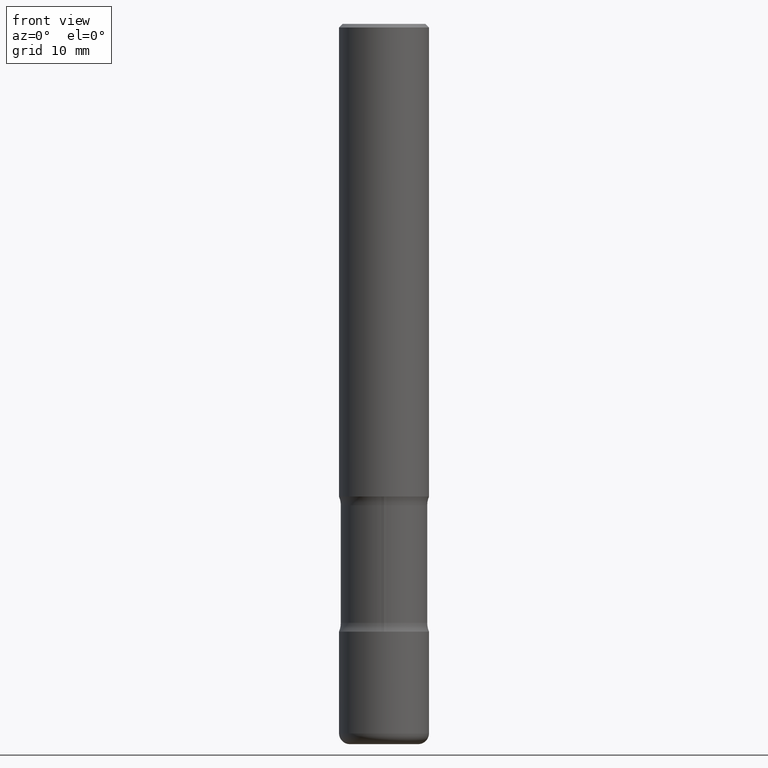
[diagram: clean part render]
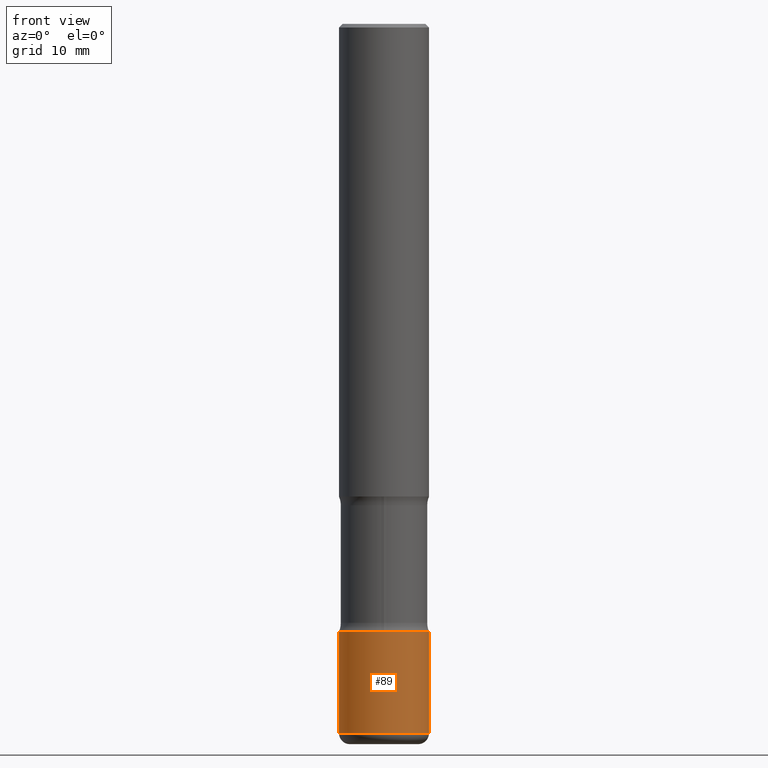
[diagram: same view with one face highlighted and labeled with its STEP entity id]
A machine part, front view. The second image highlights one B-rep face of the part: STEP entity #89.
In plain terms, the highlighted cylindrical surface (partial cylindrical patch) has radius 6.35 mm, axis along (-0, 0, 1).
Its self-contained STEP definition (entity closure, byte-faithful):
#26 = VECTOR ( 'NONE', #510, 39.37007874015748143 ) ;
#60 = CARTESIAN_POINT ( 'NONE',  ( -0.2500000000000000000, 1.776356839400250465E-15, -1.229733772563726445E-29 ) ) ;
#62 = AXIS2_PLACEMENT_3D ( 'NONE', #315, #686, #450 ) ;
#70 = VERTEX_POINT ( 'NONE', #652 ) ;
#81 = ORIENTED_EDGE ( 'NONE', *, *, #268, .T. ) ;
#89 = ADVANCED_FACE ( 'NONE', ( #163 ), #419, .T. ) ;
#92 = DIRECTION ( 'NONE',  ( -2.445468806185136877E-29, 3.491481338843145188E-15, 1.000000000000000000 ) ) ;
#97 = LINE ( 'NONE', #478, #785 ) ;
#98 = DIRECTION ( 'NONE',  ( -2.445468806185136597E-29, 3.491481338843145583E-15, 1.000000000000000000 ) ) ;
#99 = VERTEX_POINT ( 'NONE', #479 ) ;
#163 = FACE_OUTER_BOUND ( 'NONE', #461, .T. ) ;
#189 = VERTEX_POINT ( 'NONE', #299 ) ;
#192 = CARTESIAN_POINT ( 'NONE',  ( 9.635147096369438236E-29, -1.375643647504199401E-14, -3.939999999999999947 ) ) ;
#213 = CIRCLE ( 'NONE', #62, 0.2500000000000000000 ) ;
#224 = DIRECTION ( 'NONE',  ( 1.000000000000000000, -6.982962677686266711E-15, 4.876176775795935793E-29 ) ) ;
#252 = AXIS2_PLACEMENT_3D ( 'NONE', #192, #503, #747 ) ;
#268 = EDGE_CURVE ( 'NONE', #99, #189, #720, .T. ) ;
#273 = LINE ( 'NONE', #60, #26 ) ;
#299 = CARTESIAN_POINT ( 'NONE',  ( 0.2500000000000000555, -1.550217714446356069E-14, -3.939999999999999947 ) ) ;
#315 = CARTESIAN_POINT ( 'NONE',  ( 8.253457220874836014E-29, -1.178374951859561452E-14, -3.375000000000000000 ) ) ;
#358 = EDGE_CURVE ( 'NONE', #99, #394, #273, .T. ) ;
#394 = VERTEX_POINT ( 'NONE', #768 ) ;
#419 = CYLINDRICAL_SURFACE ( 'NONE', #536, 0.2500000000000000000 ) ;
#438 = EDGE_CURVE ( 'NONE', #189, #70, #97, .T. ) ;
#450 = DIRECTION ( 'NONE',  ( 1.000000000000000000, -6.982962677686262766E-15, 0.000000000000000000 ) ) ;
#461 = EDGE_LOOP ( 'NONE', ( #633, #81, #519, #748 ) ) ;
#478 = CARTESIAN_POINT ( 'NONE',  ( 0.2500000000000000000, -1.745740669421566678E-15, 1.219044193948983948E-29 ) ) ;
#479 = CARTESIAN_POINT ( 'NONE',  ( -0.2500000000000000555, -1.198007963564174355E-14, -3.939999999999999947 ) ) ;
#503 = DIRECTION ( 'NONE',  ( -2.445468806185136597E-29, 3.491481338843145583E-15, 1.000000000000000000 ) ) ;
#510 = DIRECTION ( 'NONE',  ( -2.445468806185136877E-29, 3.491481338843145188E-15, 1.000000000000000000 ) ) ;
#518 = EDGE_CURVE ( 'NONE', #394, #70, #213, .T. ) ;
#519 = ORIENTED_EDGE ( 'NONE', *, *, #438, .T. ) ;
#536 = AXIS2_PLACEMENT_3D ( 'NONE', #661, #98, #224 ) ;
#633 = ORIENTED_EDGE ( 'NONE', *, *, #358, .F. ) ;
#652 = CARTESIAN_POINT ( 'NONE',  ( 0.2500000000000000000, -1.352949018801718119E-14, -3.375000000000000000 ) ) ;
#661 = CARTESIAN_POINT ( 'NONE',  ( 0.000000000000000000, 0.000000000000000000, 0.000000000000000000 ) ) ;
#686 = DIRECTION ( 'NONE',  ( -2.445468806185136597E-29, 3.491481338843145583E-15, 1.000000000000000000 ) ) ;
#720 = CIRCLE ( 'NONE', #252, 0.2499999999999999722 ) ;
#747 = DIRECTION ( 'NONE',  ( 1.000000000000000000, -6.982962677686263555E-15, 0.000000000000000000 ) ) ;
#748 = ORIENTED_EDGE ( 'NONE', *, *, #518, .F. ) ;
#768 = CARTESIAN_POINT ( 'NONE',  ( -0.2500000000000000000, -1.099373615741855222E-14, -3.375000000000000000 ) ) ;
#785 = VECTOR ( 'NONE', #92, 39.37007874015748143 ) ;